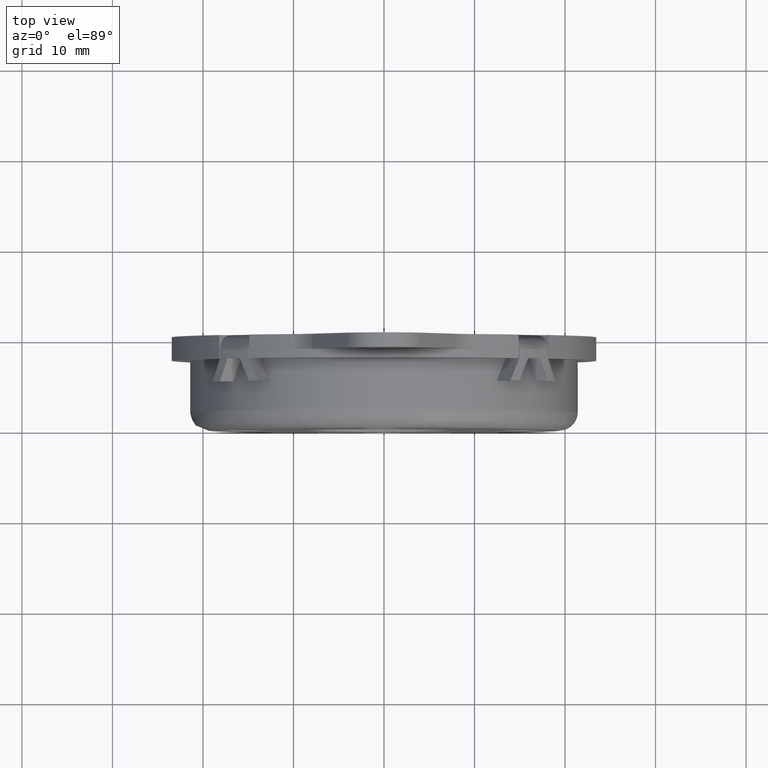
[diagram: clean part render]
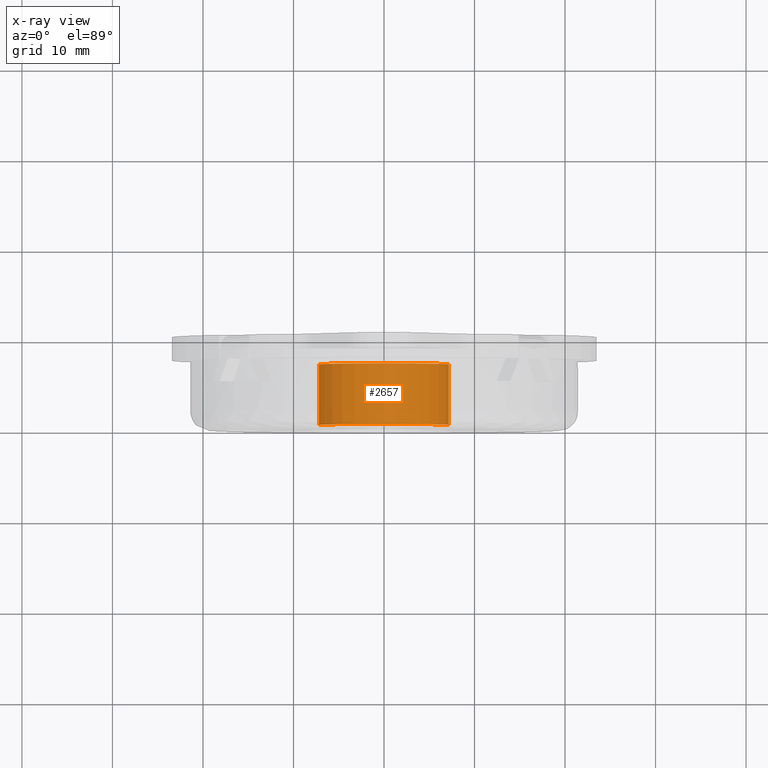
[diagram: x-ray — body ghosted, one internal face saturated and labeled with its STEP entity id]
A machine part, top view, then the same camera in x-ray: the body is ghosted and one INTERNAL B-rep face — a face not visible from any outside direction — is saturated and labeled: STEP entity #2657.
In plain terms, the highlighted face is a freeform B-spline surface patch.
Its self-contained STEP definition (entity closure, byte-faithful):
#2555=CARTESIAN_POINT('',(7.149668589818397,-2.832499874999999,-0.849846489528661));
#2556=CARTESIAN_POINT('',(7.173990831229960,-2.832499874999999,-0.645226046193439));
#2557=CARTESIAN_POINT('',(7.186570548637440,-2.832499874999999,-0.439549484650970));
#2558=CARTESIAN_POINT('',(7.626120033288411,-2.832499874999999,6.747021063986471));
#2559=CARTESIAN_POINT('',(0.439549484650970,-2.832499874999999,7.186570548637440));
#2560=CARTESIAN_POINT('',(-6.747021063986471,-2.832499874999999,7.626120033288411));
#2561=CARTESIAN_POINT('',(-7.186570548637440,-2.832499874999999,0.439549484650970));
#2562=CARTESIAN_POINT('',(7.149668589818397,-9.871692628125004,-0.849846489528661));
#2563=CARTESIAN_POINT('',(7.173990831229960,-9.871692628125002,-0.645226046193439));
#2564=CARTESIAN_POINT('',(7.186570548637440,-9.871692628125000,-0.439549484650970));
#2565=CARTESIAN_POINT('',(7.626120033288411,-9.871692628125000,6.747021063986471));
#2566=CARTESIAN_POINT('',(0.439549484650970,-9.871692628125000,7.186570548637440));
#2567=CARTESIAN_POINT('',(-6.747021063986471,-9.871692628125000,7.626120033288411));
#2568=CARTESIAN_POINT('',(-7.186570548637440,-9.871692628125000,0.439549484650970));
#2576=(BOUNDED_SURFACE()B_SPLINE_SURFACE(2,1,((#2555,#2562),(#2556,#2563),(#2557,#2564),(#2558,#2565),(#2559,#2566),(#2560,#2567),(#2561,#2568)),.UNSPECIFIED.,.F.,.F.,.U.)B_SPLINE_SURFACE_WITH_KNOTS((3,2,2,3),(2,2),(0.0,0.477174023853806,12.406524620198940,24.335875216544078),(0.0,7.039192753125004),.UNSPECIFIED.)GEOMETRIC_REPRESENTATION_ITEM()RATIONAL_B_SPLINE_SURFACE(((0.977505800795127,0.977505800795127),(0.988284271247462,0.988284271247462),(1.0,1.0),(0.707106781186548,0.707106781186548),(1.0,1.0),(0.707106781186548,0.707106781186548),(1.0,1.0)))REPRESENTATION_ITEM('')SURFACE());
#2577=CARTESIAN_POINT('',(7.149669547935636,-9.700004999999871,-0.849838428912195));
#2578=VERTEX_POINT('',#2577);
#2579=CARTESIAN_POINT('',(0.0,-9.700004999999999,7.200000000000000));
#2580=VERTEX_POINT('',#2579);
#2581=CARTESIAN_POINT('',(7.149669547935636,-9.700004999999871,-0.849838428912195));
#2582=CARTESIAN_POINT('',(7.200000000000000,-9.700004999999999,-0.426409588578298));
#2583=CARTESIAN_POINT('',(7.200000000000000,-9.700004999999999,0.0));
#2584=CARTESIAN_POINT('',(7.200000000000000,-9.700005000000001,7.200000000000000));
#2585=CARTESIAN_POINT('',(0.0,-9.700004999999999,7.200000000000000));
#2593=(BOUNDED_CURVE()B_SPLINE_CURVE(2,(#2581,#2582,#2583,#2584,#2585),.UNSPECIFIED.,.F.,.U.)B_SPLINE_CURVE_WITH_KNOTS((3,2,3),(0.229562664051814,0.250000000000000,0.500000000000000),.UNSPECIFIED.)CURVE()GEOMETRIC_REPRESENTATION_ITEM()RATIONAL_B_SPLINE_CURVE((0.956027127646915,0.976056171560655,1.0,0.707106781186547,1.0))REPRESENTATION_ITEM(''));
#2594=EDGE_CURVE('',#2578,#2580,#2593,.T.);
#2595=ORIENTED_EDGE('',*,*,#2594,.T.);
#2596=CARTESIAN_POINT('',(-7.186570548634127,-9.700004999999999,0.439549484705154));
#2597=VERTEX_POINT('',#2596);
#2598=CARTESIAN_POINT('',(0.0,-9.700004999999999,7.200000000000000));
#2599=CARTESIAN_POINT('',(-6.773083681618700,-9.700004999999999,7.200000000000000));
#2600=CARTESIAN_POINT('',(-7.186570548634127,-9.700004999999999,0.439549484705154));
#2608=(BOUNDED_CURVE()B_SPLINE_CURVE(2,(#2598,#2599,#2600),.UNSPECIFIED.,.F.,.U.)B_SPLINE_CURVE_WITH_KNOTS((3,3),(0.500000000000000,0.739332962239367),.UNSPECIFIED.)CURVE()GEOMETRIC_REPRESENTATION_ITEM()RATIONAL_B_SPLINE_CURVE((1.0,0.719603993286213,0.976072041667627))REPRESENTATION_ITEM(''));
#2609=EDGE_CURVE('',#2580,#2597,#2608,.T.);
#2610=ORIENTED_EDGE('',*,*,#2609,.T.);
#2611=CARTESIAN_POINT('',(-7.186570548634127,-2.999999999999999,0.439549484705154));
#2612=VERTEX_POINT('',#2611);
#2613=CARTESIAN_POINT('',(-7.186570548634127,-2.999999999999999,0.439549484705154));
#2614=CARTESIAN_POINT('',(-7.186570548634127,-9.700004999999999,0.439549484705154));
#2615=QUASI_UNIFORM_CURVE('',1,(#2613,#2614),.UNSPECIFIED.,.F.,.U.);
#2616=EDGE_CURVE('',#2612,#2597,#2615,.T.);
#2617=ORIENTED_EDGE('',*,*,#2616,.F.);
#2618=CARTESIAN_POINT('',(0.0,-3.0,7.200000000000000));
#2619=VERTEX_POINT('',#2618);
#2620=CARTESIAN_POINT('',(0.0,-3.0,7.200000000000000));
#2621=CARTESIAN_POINT('',(-6.773083681618700,-3.000000000000000,7.200000000000000));
#2622=CARTESIAN_POINT('',(-7.186570548634127,-3.000000000000000,0.439549484705154));
#2630=(BOUNDED_CURVE()B_SPLINE_CURVE(2,(#2620,#2621,#2622),.UNSPECIFIED.,.F.,.U.)B_SPLINE_CURVE_WITH_KNOTS((3,3),(0.500000000000000,0.739332962239367),.UNSPECIFIED.)CURVE()GEOMETRIC_REPRESENTATION_ITEM()RATIONAL_B_SPLINE_CURVE((1.0,0.719603993286213,0.976072041667627))REPRESENTATION_ITEM(''));
#2631=EDGE_CURVE('',#2619,#2612,#2630,.T.);
#2632=ORIENTED_EDGE('',*,*,#2631,.F.);
#2633=CARTESIAN_POINT('',(7.149669536133629,-3.0,-0.849838528203115));
#2634=VERTEX_POINT('',#2633);
#2635=CARTESIAN_POINT('',(7.149669536133629,-3.000000000000000,-0.849838528203115));
#2636=CARTESIAN_POINT('',(7.200000000000001,-3.000000000000000,-0.426409638748586));
#2637=CARTESIAN_POINT('',(7.200000000000000,-3.0,0.0));
#2638=CARTESIAN_POINT('',(7.200000000000000,-3.000000000000000,7.200000000000000));
#2639=CARTESIAN_POINT('',(0.0,-3.0,7.200000000000000));
#2647=(BOUNDED_CURVE()B_SPLINE_CURVE(2,(#2635,#2636,#2637,#2638,#2639),.UNSPECIFIED.,.F.,.U.)B_SPLINE_CURVE_WITH_KNOTS((3,2,3),(0.229562661704783,0.250000000000000,0.500000000000000),.UNSPECIFIED.)CURVE()GEOMETRIC_REPRESENTATION_ITEM()RATIONAL_B_SPLINE_CURVE((0.956027123046631,0.976056168810938,1.0,0.707106781186547,1.0))REPRESENTATION_ITEM(''));
#2648=EDGE_CURVE('',#2634,#2619,#2647,.T.);
#2649=ORIENTED_EDGE('',*,*,#2648,.F.);
#2650=CARTESIAN_POINT('',(7.149669536133629,-3.0,-0.849838528203115));
#2651=CARTESIAN_POINT('',(7.149669547935636,-9.700004999999871,-0.849838428912195));
#2652=QUASI_UNIFORM_CURVE('',1,(#2650,#2651),.UNSPECIFIED.,.F.,.U.);
#2653=EDGE_CURVE('',#2634,#2578,#2652,.T.);
#2654=ORIENTED_EDGE('',*,*,#2653,.T.);
#2655=EDGE_LOOP('',(#2595,#2610,#2617,#2632,#2649,#2654));
#2656=FACE_OUTER_BOUND('',#2655,.T.);
#2657=ADVANCED_FACE('',(#2656),#2576,.F.);